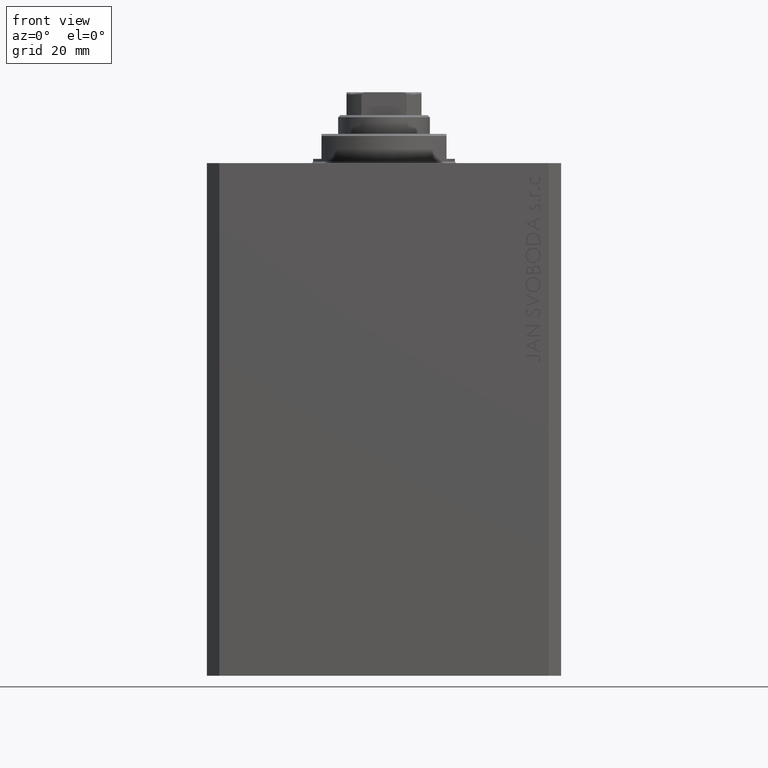
[diagram: clean part render]
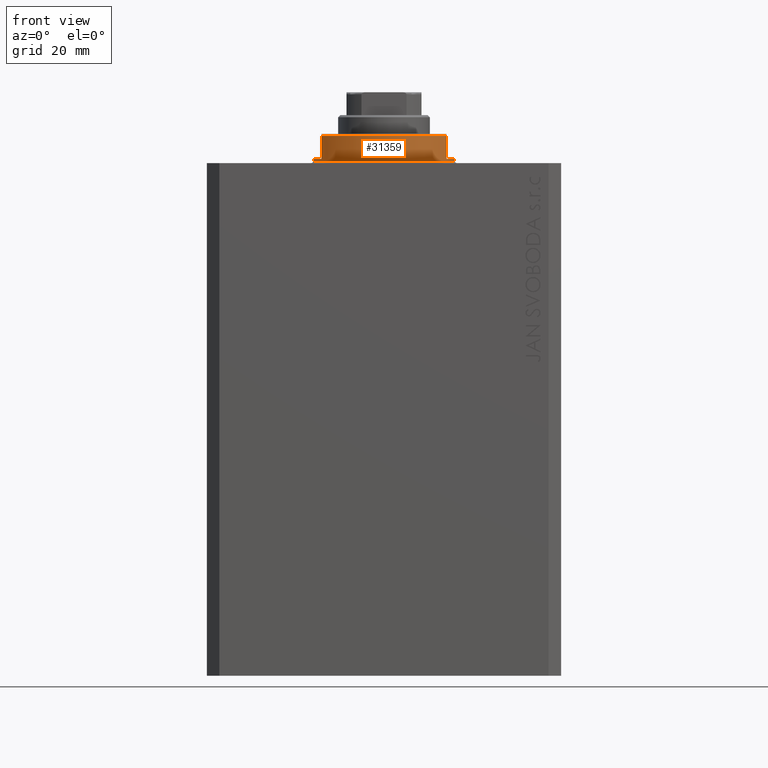
[diagram: same view with one face highlighted and labeled with its STEP entity id]
A machine part, front view. The second image highlights one B-rep face of the part: STEP entity #31359.
In plain terms, the highlighted cylindrical surface (partial cylindrical patch) has radius 17 mm, axis along (0, 0, -1).
Its self-contained STEP definition (entity closure, byte-faithful):
#146 = CARTESIAN_POINT ( 'NONE',  ( -17.00000000000000000, 2.081899558550500280E-15, -0.4999999999999995559 ) ) ;
#637 = CARTESIAN_POINT ( 'NONE',  ( 0.000000000000000000, 0.000000000000000000, -1.000000000000000000 ) ) ;
#851 = DIRECTION ( 'NONE',  ( 0.000000000000000000, 0.000000000000000000, -1.000000000000000000 ) ) ;
#1534 = CYLINDRICAL_SURFACE ( 'NONE', #4179, 17.00000000000000000 ) ;
#1672 = ORIENTED_EDGE ( 'NONE', *, *, #19370, .F. ) ;
#3523 = AXIS2_PLACEMENT_3D ( 'NONE', #40803, #16229, #26387 ) ;
#4179 = AXIS2_PLACEMENT_3D ( 'NONE', #29034, #24987, #8531 ) ;
#4584 = ORIENTED_EDGE ( 'NONE', *, *, #35383, .F. ) ;
#5031 = ORIENTED_EDGE ( 'NONE', *, *, #21158, .T. ) ;
#5195 = LINE ( 'NONE', #12180, #37523 ) ;
#5411 = ORIENTED_EDGE ( 'NONE', *, *, #40804, .F. ) ;
#5552 = LINE ( 'NONE', #40050, #28775 ) ;
#5621 = ORIENTED_EDGE ( 'NONE', *, *, #34534, .T. ) ;
#6976 = ORIENTED_EDGE ( 'NONE', *, *, #24077, .F. ) ;
#7562 = EDGE_CURVE ( 'NONE', #8207, #13202, #5552, .T. ) ;
#8207 = VERTEX_POINT ( 'NONE', #15592 ) ;
#8531 = DIRECTION ( 'NONE',  ( 1.000000000000000000, 0.000000000000000000, 0.000000000000000000 ) ) ;
#9409 = DIRECTION ( 'NONE',  ( -0.000000000000000000, -0.000000000000000000, 1.000000000000000000 ) ) ;
#9975 = CARTESIAN_POINT ( 'NONE',  ( 0.000000000000000000, 0.000000000000000000, -1.000000000000000000 ) ) ;
#11736 = LINE ( 'NONE', #22554, #29488 ) ;
#12180 = CARTESIAN_POINT ( 'NONE',  ( -17.00000000000000000, 2.081899558550500280E-15, -7.000000000000000000 ) ) ;
#12801 = CARTESIAN_POINT ( 'NONE',  ( -17.00000000000000000, 2.081899558550500280E-15, -1.000000000000000000 ) ) ;
#13202 = VERTEX_POINT ( 'NONE', #36533 ) ;
#14689 = DIRECTION ( 'NONE',  ( 0.000000000000000000, 0.000000000000000000, -1.000000000000000000 ) ) ;
#15017 = CARTESIAN_POINT ( 'NONE',  ( 15.00000000000000000, -8.000000000000001776, -6.500000000000013323 ) ) ;
#15592 = CARTESIAN_POINT ( 'NONE',  ( 17.00000000000000000, 0.000000000000000000, -1.000000000000000000 ) ) ;
#15835 = VECTOR ( 'NONE', #14689, 1000.000000000000000 ) ;
#16229 = DIRECTION ( 'NONE',  ( -0.000000000000000000, -0.000000000000000000, -1.000000000000000000 ) ) ;
#16259 = AXIS2_PLACEMENT_3D ( 'NONE', #23695, #24135, #20525 ) ;
#17391 = DIRECTION ( 'NONE',  ( -1.000000000000000000, 0.000000000000000000, 0.000000000000000000 ) ) ;
#17422 = LINE ( 'NONE', #23990, #15835 ) ;
#19370 = EDGE_CURVE ( 'NONE', #33255, #34857, #44301, .T. ) ;
#19975 = DIRECTION ( 'NONE',  ( -0.000000000000000000, -0.000000000000000000, 1.000000000000000000 ) ) ;
#20525 = DIRECTION ( 'NONE',  ( -1.000000000000000000, 0.000000000000000000, 0.000000000000000000 ) ) ;
#21158 = EDGE_CURVE ( 'NONE', #43490, #43691, #36430, .T. ) ;
#22207 = CARTESIAN_POINT ( 'NONE',  ( -14.99999999999999645, -8.000000000000003553, -1.000000000000000000 ) ) ;
#22554 = CARTESIAN_POINT ( 'NONE',  ( 15.00000000000000000, -8.000000000000001776, -7.000000000000000000 ) ) ;
#22994 = DIRECTION ( 'NONE',  ( 0.000000000000000000, 0.000000000000000000, -1.000000000000000000 ) ) ;
#23695 = CARTESIAN_POINT ( 'NONE',  ( 0.000000000000000000, 0.000000000000000000, -6.500000000000013323 ) ) ;
#23990 = CARTESIAN_POINT ( 'NONE',  ( -15.00000000000000000, -8.000000000000001776, -7.000000000000000000 ) ) ;
#24077 = EDGE_CURVE ( 'NONE', #8207, #34164, #35745, .T. ) ;
#24135 = DIRECTION ( 'NONE',  ( 0.000000000000000000, 0.000000000000000000, 1.000000000000000000 ) ) ;
#24987 = DIRECTION ( 'NONE',  ( -0.000000000000000000, -0.000000000000000000, 1.000000000000000000 ) ) ;
#26387 = DIRECTION ( 'NONE',  ( 1.000000000000000000, 0.000000000000000000, 0.000000000000000000 ) ) ;
#26516 = ORIENTED_EDGE ( 'NONE', *, *, #7562, .T. ) ;
#28775 = VECTOR ( 'NONE', #19975, 1000.000000000000000 ) ;
#29034 = CARTESIAN_POINT ( 'NONE',  ( 0.000000000000000000, 0.000000000000000000, -7.000000000000000000 ) ) ;
#29488 = VECTOR ( 'NONE', #22994, 1000.000000000000000 ) ;
#31359 = ADVANCED_FACE ( 'NONE', ( #42337 ), #1534, .T. ) ;
#32045 = EDGE_LOOP ( 'NONE', ( #5411, #1672, #43744, #5031, #4584, #6976, #26516, #5621 ) ) ;
#33255 = VERTEX_POINT ( 'NONE', #22207 ) ;
#33865 = DIRECTION ( 'NONE',  ( 0.000000000000000000, 0.000000000000000000, -1.000000000000000000 ) ) ;
#34164 = VERTEX_POINT ( 'NONE', #44297 ) ;
#34473 = CIRCLE ( 'NONE', #3523, 17.00000000000000000 ) ;
#34534 = EDGE_CURVE ( 'NONE', #13202, #39181, #34473, .T. ) ;
#34857 = VERTEX_POINT ( 'NONE', #12801 ) ;
#35383 = EDGE_CURVE ( 'NONE', #34164, #43691, #11736, .T. ) ;
#35745 = CIRCLE ( 'NONE', #37206, 17.00000000000000000 ) ;
#36430 = CIRCLE ( 'NONE', #16259, 17.00000000000000000 ) ;
#36533 = CARTESIAN_POINT ( 'NONE',  ( 17.00000000000000000, 0.000000000000000000, -0.4999999999999995559 ) ) ;
#37129 = EDGE_CURVE ( 'NONE', #33255, #43490, #17422, .T. ) ;
#37206 = AXIS2_PLACEMENT_3D ( 'NONE', #637, #851, #41881 ) ;
#37523 = VECTOR ( 'NONE', #9409, 1000.000000000000000 ) ;
#38515 = AXIS2_PLACEMENT_3D ( 'NONE', #9975, #33865, #17391 ) ;
#38738 = CARTESIAN_POINT ( 'NONE',  ( -15.00000000000000000, -8.000000000000001776, -6.500000000000014211 ) ) ;
#39181 = VERTEX_POINT ( 'NONE', #146 ) ;
#40050 = CARTESIAN_POINT ( 'NONE',  ( 17.00000000000000000, 0.000000000000000000, -7.000000000000000000 ) ) ;
#40803 = CARTESIAN_POINT ( 'NONE',  ( 0.000000000000000000, 0.000000000000000000, -0.4999999999999995559 ) ) ;
#40804 = EDGE_CURVE ( 'NONE', #34857, #39181, #5195, .T. ) ;
#41881 = DIRECTION ( 'NONE',  ( -1.000000000000000000, 0.000000000000000000, 0.000000000000000000 ) ) ;
#42337 = FACE_OUTER_BOUND ( 'NONE', #32045, .T. ) ;
#43490 = VERTEX_POINT ( 'NONE', #38738 ) ;
#43691 = VERTEX_POINT ( 'NONE', #15017 ) ;
#43744 = ORIENTED_EDGE ( 'NONE', *, *, #37129, .T. ) ;
#44297 = CARTESIAN_POINT ( 'NONE',  ( 14.99999999999999645, -8.000000000000003553, -1.000000000000000000 ) ) ;
#44301 = CIRCLE ( 'NONE', #38515, 17.00000000000000000 ) ;